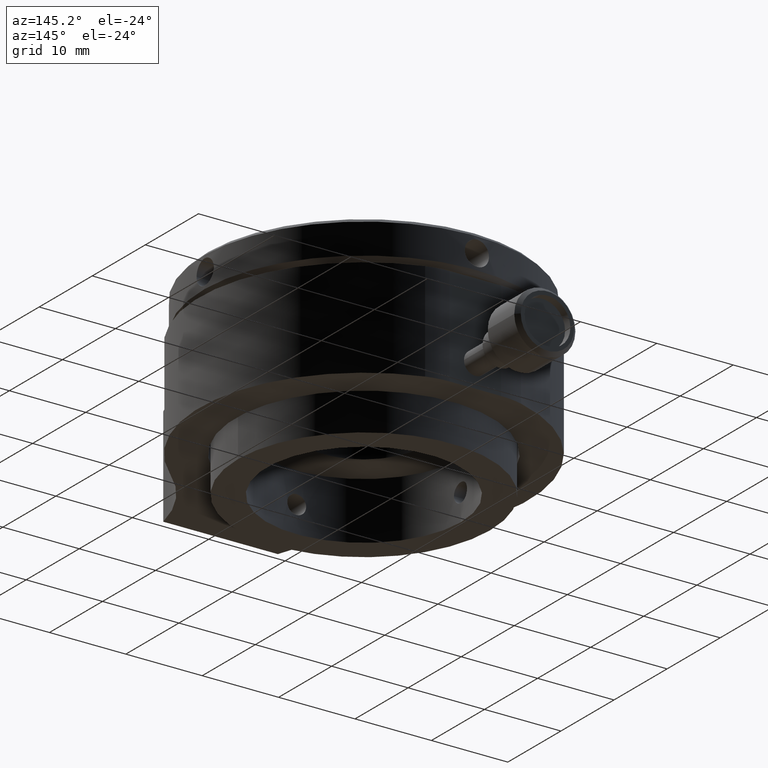
[diagram: clean part render]
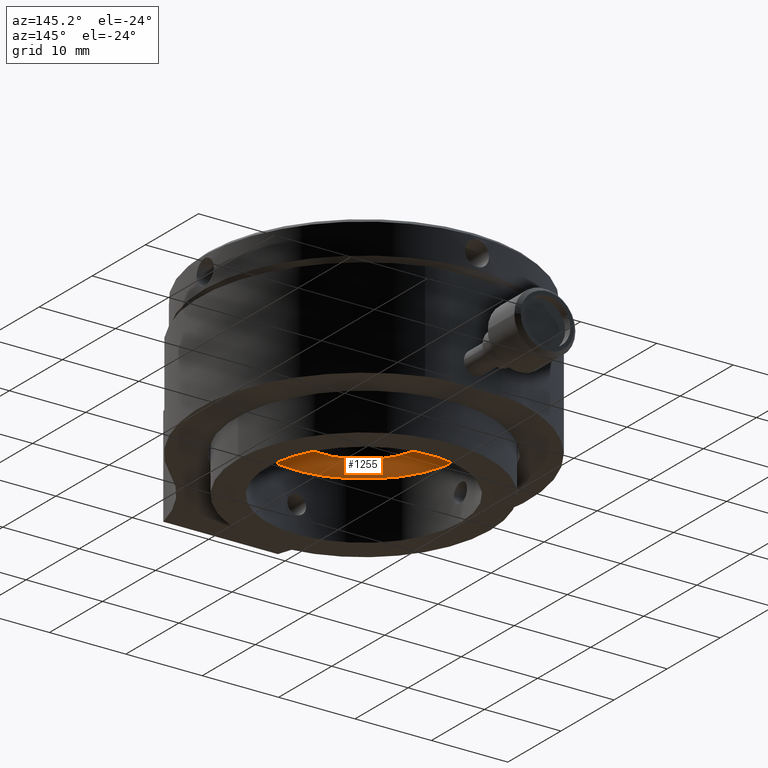
[diagram: same view with one face highlighted and labeled with its STEP entity id]
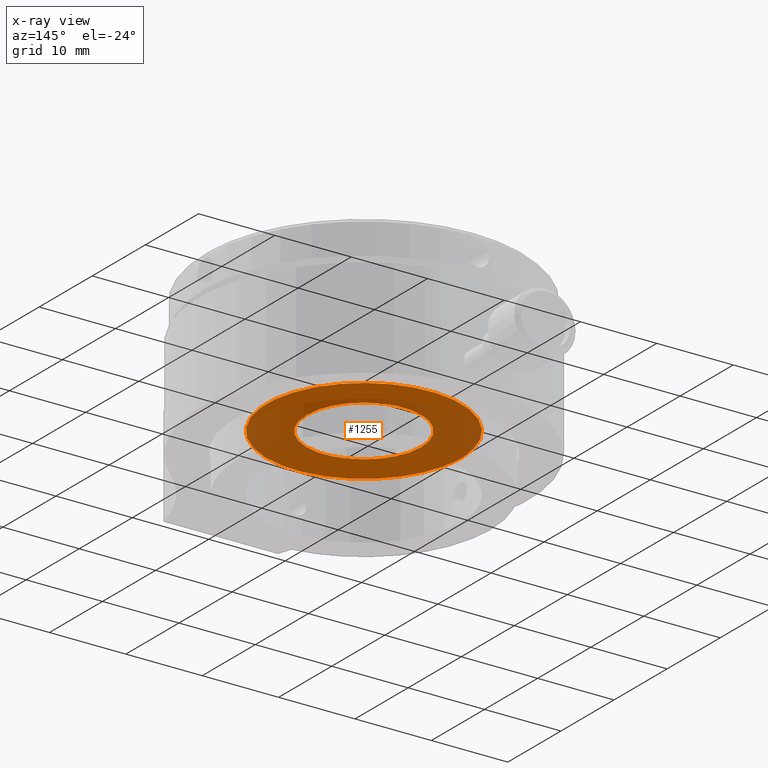
[diagram: x-ray of the same camera — body ghosted, the highlighted face saturated]
A machine part, auxiliary view. The second image highlights one B-rep face of the part: STEP entity #1255.
The next image is the same camera in x-ray: the body ghosted, the highlighted face saturated — about 48% of this face is hidden behind the body in this view.
In plain terms, the highlighted planar face has unit normal (0, -0, 1).
Its self-contained STEP definition (entity closure, byte-faithful):
#34=FACE_BOUND('',#242,.T.);
#68=PLANE('',#1383);
#153=FACE_OUTER_BOUND('',#241,.T.);
#241=EDGE_LOOP('',(#920));
#242=EDGE_LOOP('',(#921,#922));
#428=CIRCLE('',#1384,12.7);
#429=CIRCLE('',#1385,7.5);
#430=CIRCLE('',#1386,7.5);
#537=VERTEX_POINT('',#2433);
#538=VERTEX_POINT('',#2435);
#539=VERTEX_POINT('',#2436);
#680=EDGE_CURVE('',#537,#537,#428,.T.);
#681=EDGE_CURVE('',#538,#539,#429,.T.);
#682=EDGE_CURVE('',#539,#538,#430,.T.);
#920=ORIENTED_EDGE('',*,*,#680,.T.);
#921=ORIENTED_EDGE('',*,*,#681,.F.);
#922=ORIENTED_EDGE('',*,*,#682,.F.);
#1255=ADVANCED_FACE('',(#153,#34),#68,.F.);
#1383=AXIS2_PLACEMENT_3D('',#2432,#1635,#1636);
#1384=AXIS2_PLACEMENT_3D('',#2434,#1637,#1638);
#1385=AXIS2_PLACEMENT_3D('',#2437,#1639,#1640);
#1386=AXIS2_PLACEMENT_3D('',#2438,#1641,#1642);
#1635=DIRECTION('center_axis',(7.63278329429804E-17,-6.12323399573672E-17,
1.));
#1636=DIRECTION('ref_axis',(1.,8.47033636166701E-18,-7.63278329429804E-17));
#1637=DIRECTION('center_axis',(-7.63278329429804E-17,6.12323399573672E-17,
-1.));
#1638=DIRECTION('ref_axis',(1.,8.47033636166701E-18,-7.63278329429804E-17));
#1639=DIRECTION('center_axis',(-7.63278329429804E-17,6.12323399573672E-17,
-1.));
#1640=DIRECTION('ref_axis',(-1.,-8.47033636166701E-18,7.63278329429804E-17));
#1641=DIRECTION('center_axis',(-7.63278329429804E-17,6.12323399573672E-17,
-1.));
#1642=DIRECTION('ref_axis',(-1.,-8.47033636166701E-18,7.63278329429804E-17));
#2432=CARTESIAN_POINT('Origin',(21.5,27.,22.1988721972859));
#2433=CARTESIAN_POINT('',(8.8,27.,22.1988721972859));
#2434=CARTESIAN_POINT('Origin',(21.5,27.,22.1988721972859));
#2435=CARTESIAN_POINT('',(14.,27.,22.1988721972859));
#2436=CARTESIAN_POINT('',(29.,27.,22.1988721972859));
#2437=CARTESIAN_POINT('Origin',(21.5,27.,22.1988721972859));
#2438=CARTESIAN_POINT('Origin',(21.5,27.,22.1988721972859));